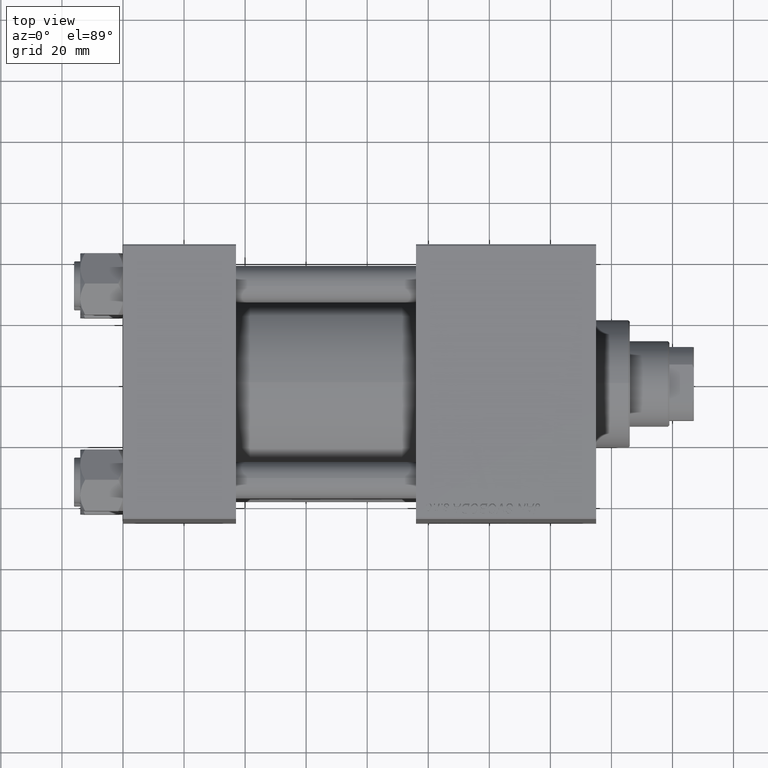
[diagram: clean part render]
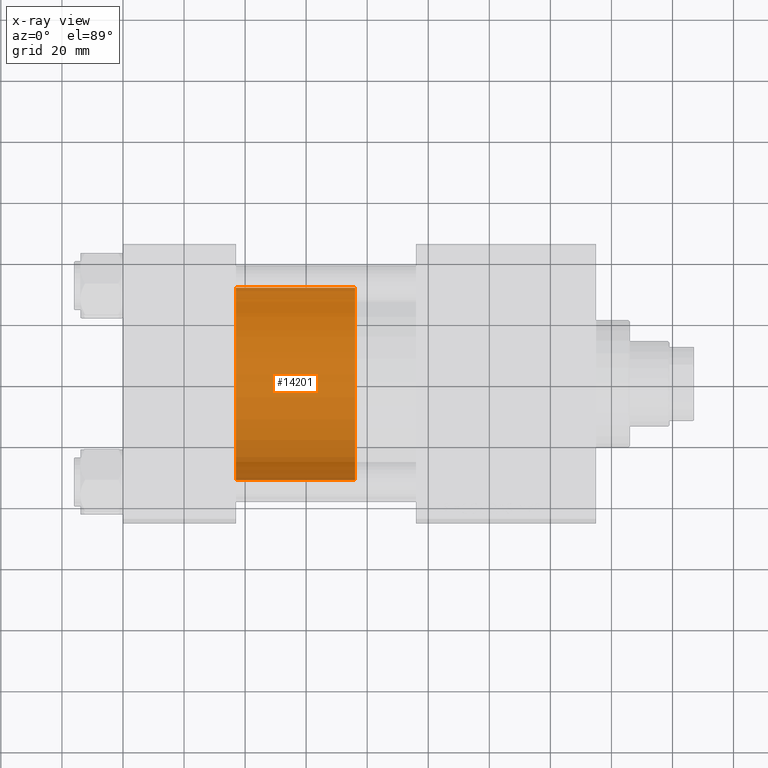
[diagram: x-ray — body ghosted, one internal face saturated and labeled with its STEP entity id]
A machine part, top view, then the same camera in x-ray: the body is ghosted and one INTERNAL B-rep face — a face not visible from any outside direction — is saturated and labeled: STEP entity #14201.
In plain terms, the highlighted cylindrical surface (partial cylindrical patch) has radius 31.5 mm, axis along (-1, 0, 0).
Its self-contained STEP definition (entity closure, byte-faithful):
#1331 = VERTEX_POINT ( 'NONE', #47314 ) ;
#1657 = VECTOR ( 'NONE', #23269, 1000.000000000000000 ) ;
#2041 = CARTESIAN_POINT ( 'NONE',  ( 0.000000000000000000, 0.000000000000000000, 0.000000000000000000 ) ) ;
#2531 = DIRECTION ( 'NONE',  ( 0.000000000000000000, 0.000000000000000000, 1.000000000000000000 ) ) ;
#4759 = EDGE_CURVE ( 'NONE', #46421, #1331, #12105, .T. ) ;
#6843 = DIRECTION ( 'NONE',  ( 1.000000000000000000, 0.000000000000000000, 0.000000000000000000 ) ) ;
#7782 = CARTESIAN_POINT ( 'NONE',  ( 31.50000000000000000, 3.857637417314162689E-15, 39.00000000000000000 ) ) ;
#9674 = CYLINDRICAL_SURFACE ( 'NONE', #10730, 31.50000000000000000 ) ;
#10156 = CARTESIAN_POINT ( 'NONE',  ( 0.000000000000000000, 0.000000000000000000, 39.00000000000000000 ) ) ;
#10730 = AXIS2_PLACEMENT_3D ( 'NONE', #10156, #25652, #41620 ) ;
#12105 = CIRCLE ( 'NONE', #33965, 31.50000000000000000 ) ;
#13278 = EDGE_CURVE ( 'NONE', #1331, #50027, #14953, .T. ) ;
#14201 = ADVANCED_FACE ( 'NONE', ( #29460 ), #9674, .T. ) ;
#14953 = LINE ( 'NONE', #34499, #27734 ) ;
#16475 = CARTESIAN_POINT ( 'NONE',  ( -31.50000000000000000, 0.000000000000000000, 0.000000000000000000 ) ) ;
#19545 = EDGE_LOOP ( 'NONE', ( #48696, #43165, #32443, #43135 ) ) ;
#21244 = CARTESIAN_POINT ( 'NONE',  ( 31.50000000000000000, 3.857637417314162689E-15, 39.00000000000000000 ) ) ;
#22356 = DIRECTION ( 'NONE',  ( 1.000000000000000000, 0.000000000000000000, 0.000000000000000000 ) ) ;
#23269 = DIRECTION ( 'NONE',  ( -0.000000000000000000, -0.000000000000000000, -1.000000000000000000 ) ) ;
#25652 = DIRECTION ( 'NONE',  ( -0.000000000000000000, -0.000000000000000000, -1.000000000000000000 ) ) ;
#25671 = DIRECTION ( 'NONE',  ( 0.000000000000000000, 0.000000000000000000, 1.000000000000000000 ) ) ;
#26120 = EDGE_CURVE ( 'NONE', #28338, #50027, #48318, .T. ) ;
#27734 = VECTOR ( 'NONE', #29953, 1000.000000000000000 ) ;
#28338 = VERTEX_POINT ( 'NONE', #34599 ) ;
#29460 = FACE_OUTER_BOUND ( 'NONE', #19545, .T. ) ;
#29953 = DIRECTION ( 'NONE',  ( -0.000000000000000000, -0.000000000000000000, -1.000000000000000000 ) ) ;
#32443 = ORIENTED_EDGE ( 'NONE', *, *, #26120, .T. ) ;
#33965 = AXIS2_PLACEMENT_3D ( 'NONE', #34271, #25671, #22356 ) ;
#34271 = CARTESIAN_POINT ( 'NONE',  ( 0.000000000000000000, 0.000000000000000000, 39.00000000000000000 ) ) ;
#34499 = CARTESIAN_POINT ( 'NONE',  ( -31.50000000000000000, 0.000000000000000000, 39.00000000000000000 ) ) ;
#34599 = CARTESIAN_POINT ( 'NONE',  ( 31.50000000000000000, 3.857637417314162689E-15, 0.000000000000000000 ) ) ;
#38484 = LINE ( 'NONE', #7782, #1657 ) ;
#39693 = EDGE_CURVE ( 'NONE', #46421, #28338, #38484, .T. ) ;
#41620 = DIRECTION ( 'NONE',  ( -1.000000000000000000, 0.000000000000000000, 0.000000000000000000 ) ) ;
#43135 = ORIENTED_EDGE ( 'NONE', *, *, #13278, .F. ) ;
#43165 = ORIENTED_EDGE ( 'NONE', *, *, #39693, .T. ) ;
#46421 = VERTEX_POINT ( 'NONE', #21244 ) ;
#46691 = AXIS2_PLACEMENT_3D ( 'NONE', #2041, #2531, #6843 ) ;
#47314 = CARTESIAN_POINT ( 'NONE',  ( -31.50000000000000000, 0.000000000000000000, 39.00000000000000000 ) ) ;
#48318 = CIRCLE ( 'NONE', #46691, 31.50000000000000000 ) ;
#48696 = ORIENTED_EDGE ( 'NONE', *, *, #4759, .F. ) ;
#50027 = VERTEX_POINT ( 'NONE', #16475 ) ;